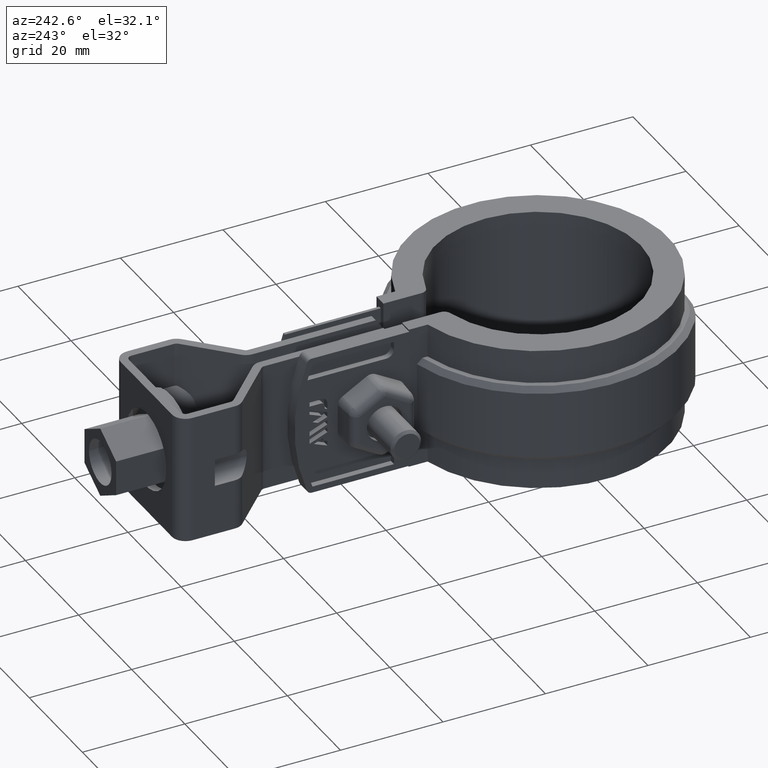
[diagram: clean part render]
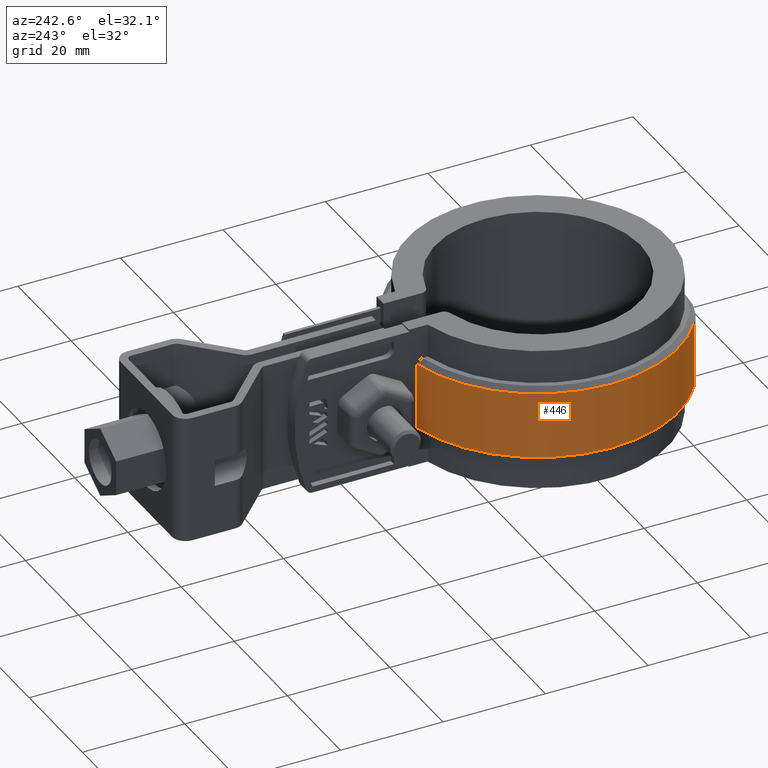
[diagram: same view with one face highlighted and labeled with its STEP entity id]
A machine part, auxiliary view. The second image highlights one B-rep face of the part: STEP entity #446.
In plain terms, the highlighted cylindrical surface (partial cylindrical patch) has radius 27.445 mm, axis along (0, 0, -1).
Its self-contained STEP definition (entity closure, byte-faithful):
#446 = ADVANCED_FACE( '', ( #876 ), #877, .T. );
#876 = FACE_OUTER_BOUND( '', #1985, .T. );
#877 = CYLINDRICAL_SURFACE( '', #1986, 27.4450000000000 );
#1985 = EDGE_LOOP( '', ( #4173, #4174, #4175, #4176 ) );
#1986 = AXIS2_PLACEMENT_3D( '', #4177, #4178, #4179 );
#4173 = ORIENTED_EDGE( '', *, *, #6904, .F. );
#4174 = ORIENTED_EDGE( '', *, *, #6915, .T. );
#4175 = ORIENTED_EDGE( '', *, *, #6916, .T. );
#4176 = ORIENTED_EDGE( '', *, *, #6917, .T. );
#4177 = CARTESIAN_POINT( '', ( -8.67361737988404E-016, -1.04083408558608E-014, -20.0000000000000 ) );
#4178 = DIRECTION( '', ( 0.000000000000000, 0.000000000000000, -1.00000000000000 ) );
#4179 = DIRECTION( '', ( 0.207720362978151, 0.978188249164866, 0.000000000000000 ) );
#6904 = EDGE_CURVE( '', #8075, #8077, #8078, .T. );
#6915 = EDGE_CURVE( '', #8075, #8084, #8095, .F. );
#6916 = EDGE_CURVE( '', #8084, #8096, #8097, .T. );
#6917 = EDGE_CURVE( '', #8096, #8077, #8098, .T. );
#8075 = VERTEX_POINT( '', #11374 );
#8077 = VERTEX_POINT( '', #11379 );
#8078 = LINE( '', #11380, #11381 );
#8084 = VERTEX_POINT( '', #11392 );
#8095 = CIRCLE( '', #11407, 27.4450000000000 );
#8096 = VERTEX_POINT( '', #11408 );
#8097 = LINE( '', #11409, #11410 );
#8098 = CIRCLE( '', #11411, 27.4450000000000 );
#11374 = CARTESIAN_POINT( '', ( -6.10000000000002, 26.7585131313382, -19.0000000000000 ) );
#11379 = CARTESIAN_POINT( '', ( -6.10000000000002, 26.7585131313382, -6.00000000000000 ) );
#11380 = CARTESIAN_POINT( '', ( -6.10000000000002, 26.7585131313382, -20.0000000000000 ) );
#11381 = VECTOR( '', #13347, 1000.00000000000 );
#11392 = CARTESIAN_POINT( '', ( -15.8856566686168, -22.3802130733117, -19.0000000000000 ) );
#11407 = AXIS2_PLACEMENT_3D( '', #13363, #13364, #13365 );
#11408 = CARTESIAN_POINT( '', ( -15.8856566686168, -22.3802130733117, -6.00000000000000 ) );
#11409 = CARTESIAN_POINT( '', ( -15.8856566686168, -22.3802130733117, -20.0000000000000 ) );
#11410 = VECTOR( '', #13366, 1000.00000000000 );
#11411 = AXIS2_PLACEMENT_3D( '', #13367, #13368, #13369 );
#13347 = DIRECTION( '', ( 0.000000000000000, 0.000000000000000, 1.00000000000000 ) );
#13363 = CARTESIAN_POINT( '', ( -8.67361737988404E-016, -1.04083408558608E-014, -19.0000000000000 ) );
#13364 = DIRECTION( '', ( 0.000000000000000, 0.000000000000000, -1.00000000000000 ) );
#13365 = DIRECTION( '', ( -1.00000000000000, 0.000000000000000, 0.000000000000000 ) );
#13366 = DIRECTION( '', ( 0.000000000000000, 0.000000000000000, 1.00000000000000 ) );
#13367 = CARTESIAN_POINT( '', ( -8.67361737988404E-016, -1.04083408558608E-014, -6.00000000000000 ) );
#13368 = DIRECTION( '', ( 0.000000000000000, 0.000000000000000, -1.00000000000000 ) );
#13369 = DIRECTION( '', ( -1.00000000000000, 0.000000000000000, 0.000000000000000 ) );